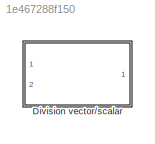
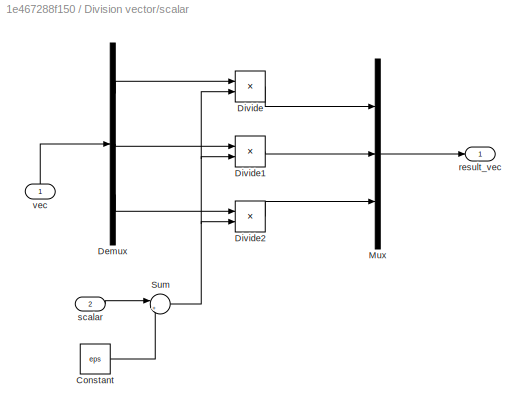
MODEL slx_1e467288f150
KIND library
BLOCK [SubSystem] Division vector//scalar
  Ports = [2, 1]
  RequestExecContextInheritance = off
BLOCK [Constant] Division vector//scalar/Constant
  Value = eps
BLOCK [Demux] Division vector//scalar/Demux
  DisplayOption = bar
  Outputs = 3
  Ports = [1, 3]
BLOCK [Product] Division vector//scalar/Divide
  InputSameDT = off
  Inputs = */
  OutDataTypeStr = Inherit: Inherit via internal rule
  Ports = [2, 1]
  RndMeth = Floor
  SaturateOnIntegerOverflow = off
BLOCK [Product] Division vector//scalar/Divide1
  InputSameDT = off
  Inputs = */
  OutDataTypeStr = Inherit: Inherit via internal rule
  Ports = [2, 1]
  RndMeth = Floor
  SaturateOnIntegerOverflow = off
BLOCK [Product] Division vector//scalar/Divide2
  InputSameDT = off
  Inputs = */
  OutDataTypeStr = Inherit: Inherit via internal rule
  Ports = [2, 1]
  RndMeth = Floor
  SaturateOnIntegerOverflow = off
BLOCK [Mux] Division vector//scalar/Mux
  DisplayOption = bar
  Inputs = 3
  Ports = [3, 1]
BLOCK [Sum] Division vector//scalar/Sum
  IconShape = round
  InputSameDT = off
  Inputs = |++
  OutDataTypeStr = Inherit: Inherit via internal rule
  Ports = [2, 1]
  SaturateOnIntegerOverflow = off
BLOCK [Outport] Division vector//scalar/result_vec
  IconDisplay = Port number
BLOCK [Inport] Division vector//scalar/scalar
  IconDisplay = Port number
  Port = 2
BLOCK [Inport] Division vector//scalar/vec
  IconDisplay = Port number
LINE Division vector//scalar/Constant:1 -> Division vector//scalar/Sum:2
LINE Division vector//scalar/Demux:1 -> Division vector//scalar/Divide:1
LINE Division vector//scalar/Demux:2 -> Division vector//scalar/Divide1:1
LINE Division vector//scalar/Demux:3 -> Division vector//scalar/Divide2:1
LINE Division vector//scalar/Divide1:1 -> Division vector//scalar/Mux:2
LINE Division vector//scalar/Divide2:1 -> Division vector//scalar/Mux:3
LINE Division vector//scalar/Divide:1 -> Division vector//scalar/Mux:1
LINE Division vector//scalar/Mux:1 -> Division vector//scalar/result_vec:1
NET Division vector//scalar/Sum:1 -> Division vector//scalar/Divide1:2, Division vector//scalar/Divide2:2, Division vector//scalar/Divide:2
LINE Division vector//scalar/scalar:1 -> Division vector//scalar/Sum:1
LINE Division vector//scalar/vec:1 -> Division vector//scalar/Demux:1
note: NET lines group one-source signal fan-out (src -> all destinations, sorted); 1:1 wires keep LINE
